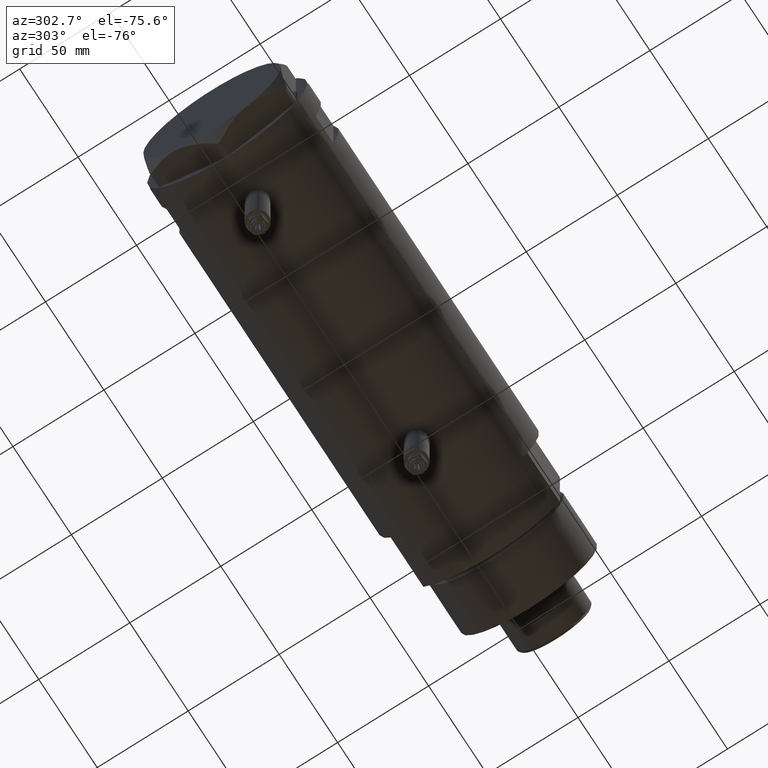
[diagram: clean part render]
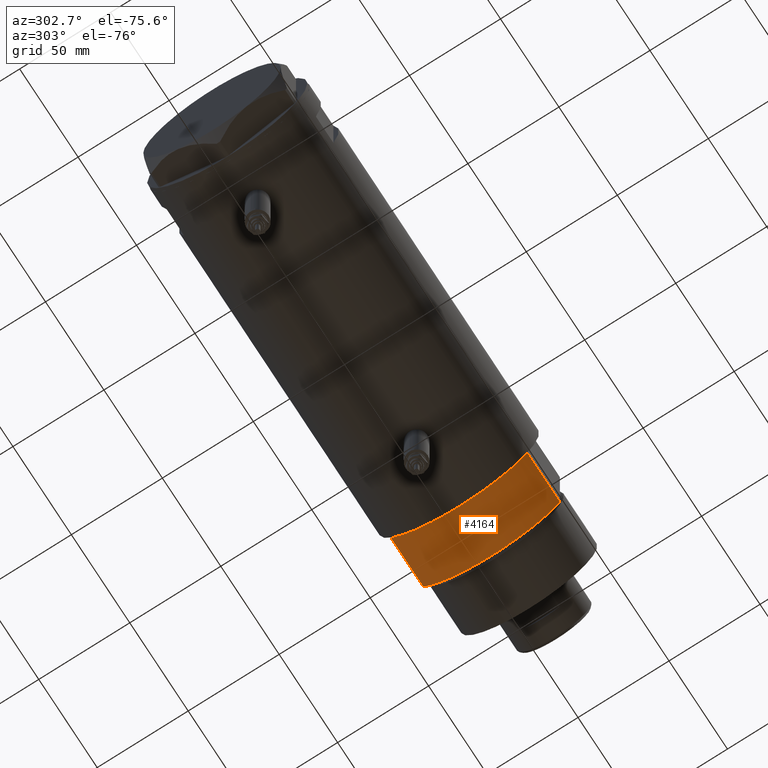
[diagram: same view with one face highlighted and labeled with its STEP entity id]
A machine part, auxiliary view. The second image highlights one B-rep face of the part: STEP entity #4164.
In plain terms, the highlighted cylindrical surface (partial cylindrical patch) has radius 44 mm, axis along (-1, -0, 0).
Its self-contained STEP definition (entity closure, byte-faithful):
#26 = EDGE_CURVE ( 'NONE', #3780, #4218, #288, .T. ) ;
#288 = CIRCLE ( 'NONE', #5521, 44.00000000000000000 ) ;
#365 = VECTOR ( 'NONE', #880, 1000.000000000000000 ) ;
#503 = DIRECTION ( 'NONE',  ( -1.000000000000000000, 0.000000000000000000, 0.000000000000000000 ) ) ;
#724 = CARTESIAN_POINT ( 'NONE',  ( 0.000000000000000000, 0.000000000000000000, 0.000000000000000000 ) ) ;
#880 = DIRECTION ( 'NONE',  ( -0.000000000000000000, -0.000000000000000000, 1.000000000000000000 ) ) ;
#946 = CARTESIAN_POINT ( 'NONE',  ( 0.000000000000000000, 0.000000000000000000, 27.89999999999999858 ) ) ;
#1087 = ORIENTED_EDGE ( 'NONE', *, *, #4936, .T. ) ;
#1666 = ORIENTED_EDGE ( 'NONE', *, *, #26, .T. ) ;
#1815 = EDGE_CURVE ( 'NONE', #3780, #4374, #2879, .T. ) ;
#1959 = CARTESIAN_POINT ( 'NONE',  ( 23.01629857296780557, -37.50000000000000000, 0.000000000000000000 ) ) ;
#2143 = CIRCLE ( 'NONE', #3499, 44.00000000000000000 ) ;
#2194 = DIRECTION ( 'NONE',  ( 1.000000000000000000, 0.000000000000000000, 0.000000000000000000 ) ) ;
#2879 = LINE ( 'NONE', #1959, #4163 ) ;
#3004 = EDGE_CURVE ( 'NONE', #4374, #4154, #2143, .T. ) ;
#3114 = EDGE_LOOP ( 'NONE', ( #3586, #4707, #1666, #1087 ) ) ;
#3499 = AXIS2_PLACEMENT_3D ( 'NONE', #5155, #3753, #5736 ) ;
#3586 = ORIENTED_EDGE ( 'NONE', *, *, #3004, .F. ) ;
#3753 = DIRECTION ( 'NONE',  ( 0.000000000000000000, 0.000000000000000000, 1.000000000000000000 ) ) ;
#3762 = CARTESIAN_POINT ( 'NONE',  ( 23.01629857296780557, -37.50000000000000000, 0.000000000000000000 ) ) ;
#3780 = VERTEX_POINT ( 'NONE', #3762 ) ;
#4076 = DIRECTION ( 'NONE',  ( 0.000000000000000000, 0.000000000000000000, 1.000000000000000000 ) ) ;
#4154 = VERTEX_POINT ( 'NONE', #5636 ) ;
#4163 = VECTOR ( 'NONE', #4740, 1000.000000000000000 ) ;
#4164 = ADVANCED_FACE ( 'NONE', ( #4744 ), #4290, .T. ) ;
#4218 = VERTEX_POINT ( 'NONE', #4774 ) ;
#4290 = CYLINDRICAL_SURFACE ( 'NONE', #5458, 44.00000000000000000 ) ;
#4374 = VERTEX_POINT ( 'NONE', #5787 ) ;
#4668 = DIRECTION ( 'NONE',  ( -0.000000000000000000, -0.000000000000000000, -1.000000000000000000 ) ) ;
#4707 = ORIENTED_EDGE ( 'NONE', *, *, #1815, .F. ) ;
#4740 = DIRECTION ( 'NONE',  ( -0.000000000000000000, -0.000000000000000000, 1.000000000000000000 ) ) ;
#4744 = FACE_OUTER_BOUND ( 'NONE', #3114, .T. ) ;
#4774 = CARTESIAN_POINT ( 'NONE',  ( 23.01629857296780557, 37.50000000000000000, 0.000000000000000000 ) ) ;
#4936 = EDGE_CURVE ( 'NONE', #4218, #4154, #5933, .T. ) ;
#4945 = CARTESIAN_POINT ( 'NONE',  ( 23.01629857296780557, 37.50000000000000000, 0.000000000000000000 ) ) ;
#5155 = CARTESIAN_POINT ( 'NONE',  ( 0.000000000000000000, 0.000000000000000000, 27.89999999999999858 ) ) ;
#5458 = AXIS2_PLACEMENT_3D ( 'NONE', #946, #4668, #503 ) ;
#5521 = AXIS2_PLACEMENT_3D ( 'NONE', #724, #4076, #2194 ) ;
#5636 = CARTESIAN_POINT ( 'NONE',  ( 23.01629857296780557, 37.50000000000000000, 27.89999999999999858 ) ) ;
#5736 = DIRECTION ( 'NONE',  ( 1.000000000000000000, 0.000000000000000000, 0.000000000000000000 ) ) ;
#5787 = CARTESIAN_POINT ( 'NONE',  ( 23.01629857296780557, -37.50000000000000000, 27.89999999999999858 ) ) ;
#5933 = LINE ( 'NONE', #4945, #365 ) ;